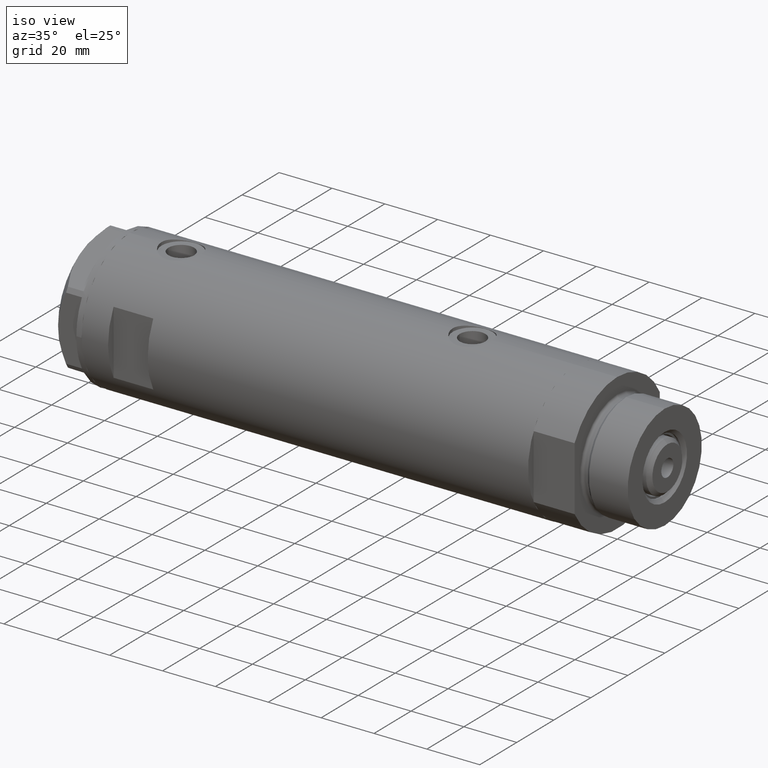
[diagram: clean part render]
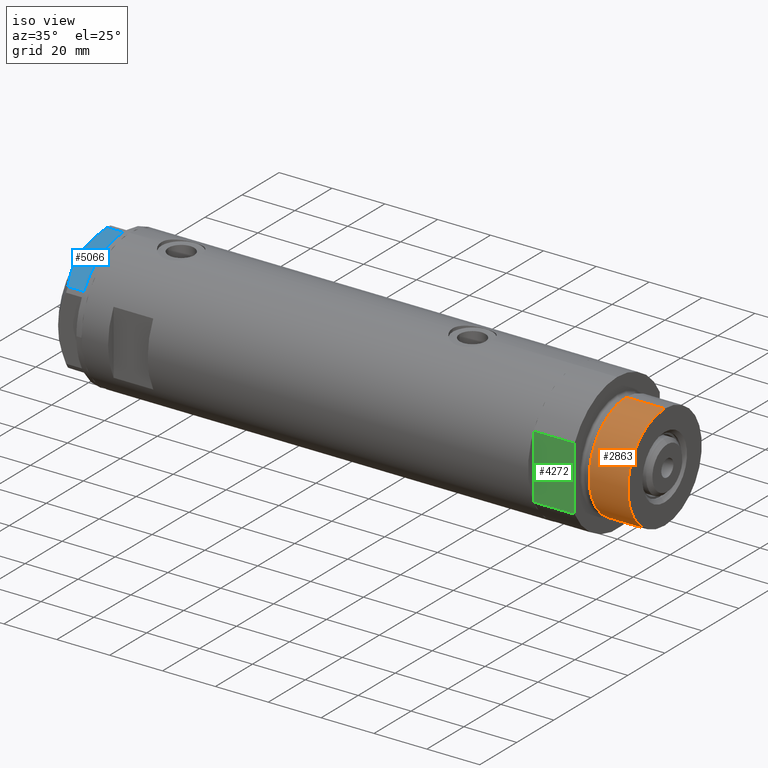
[diagram: same view with three faces highlighted in distinct colors, each labeled with its STEP entity id]
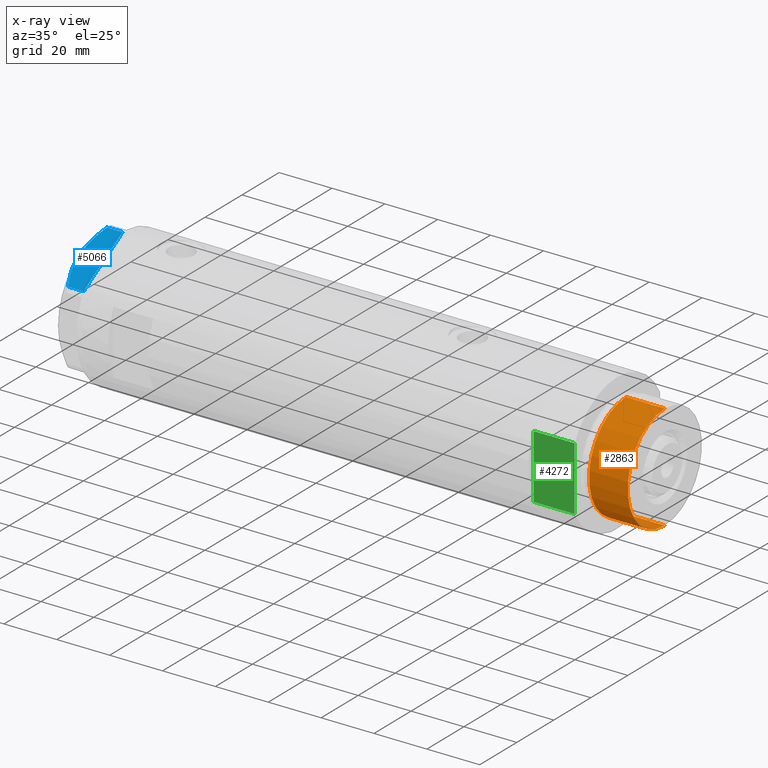
[diagram: x-ray of the same camera — body ghosted, the three highlighted faces saturated]
A machine part, iso view with three faces highlighted in distinct colors.
The next image is the same camera in x-ray (body ghosted, the three faces saturated) — at least one of them is partly hidden behind the body in this view.
Their STEP definitions:

[orange] entity #2863 — the highlighted cylindrical surface (partial cylindrical patch) has radius 20 mm, axis along (-1, -0, 0).
#182 = CARTESIAN_POINT ( 'NONE',  ( -19.99999999999999645, 0.000000000000000000, 18.87384048104053846 ) ) ;
#496 = ORIENTED_EDGE ( 'NONE', *, *, #768, .T. ) ;
#559 = EDGE_CURVE ( 'NONE', #4951, #3805, #786, .T. ) ;
#724 = EDGE_LOOP ( 'NONE', ( #3495, #1190, #3312, #496 ) ) ;
#768 = EDGE_CURVE ( 'NONE', #2172, #3805, #4469, .T. ) ;
#785 = DIRECTION ( 'NONE',  ( -0.000000000000000000, -0.000000000000000000, -1.000000000000000000 ) ) ;
#786 = LINE ( 'NONE', #5188, #2713 ) ;
#948 = CYLINDRICAL_SURFACE ( 'NONE', #4824, 19.99999999999999645 ) ;
#952 = VECTOR ( 'NONE', #785, 1000.000000000000000 ) ;
#1081 = EDGE_CURVE ( 'NONE', #3123, #4951, #1869, .T. ) ;
#1190 = ORIENTED_EDGE ( 'NONE', *, *, #1081, .F. ) ;
#1869 = CIRCLE ( 'NONE', #3367, 19.99999999999999645 ) ;
#1996 = DIRECTION ( 'NONE',  ( -0.000000000000000000, -0.000000000000000000, -1.000000000000000000 ) ) ;
#2172 = VERTEX_POINT ( 'NONE', #182 ) ;
#2449 = AXIS2_PLACEMENT_3D ( 'NONE', #4514, #4177, #2955 ) ;
#2713 = VECTOR ( 'NONE', #1996, 1000.000000000000000 ) ;
#2778 = LINE ( 'NONE', #4387, #952 ) ;
#2863 = ADVANCED_FACE ( 'NONE', ( #4945 ), #948, .T. ) ;
#2955 = DIRECTION ( 'NONE',  ( 1.000000000000000000, 0.000000000000000000, 0.000000000000000000 ) ) ;
#3041 = CARTESIAN_POINT ( 'NONE',  ( 0.000000000000000000, 0.000000000000000000, 33.50000000000000000 ) ) ;
#3123 = VERTEX_POINT ( 'NONE', #4079 ) ;
#3312 = ORIENTED_EDGE ( 'NONE', *, *, #5001, .T. ) ;
#3364 = DIRECTION ( 'NONE',  ( -1.000000000000000000, 0.000000000000000000, 0.000000000000000000 ) ) ;
#3367 = AXIS2_PLACEMENT_3D ( 'NONE', #3041, #3545, #5151 ) ;
#3495 = ORIENTED_EDGE ( 'NONE', *, *, #559, .F. ) ;
#3545 = DIRECTION ( 'NONE',  ( 0.000000000000000000, 0.000000000000000000, 1.000000000000000000 ) ) ;
#3764 = CARTESIAN_POINT ( 'NONE',  ( 19.99999999999999645, 2.449293598294706119E-15, 18.87384048104053846 ) ) ;
#3765 = CARTESIAN_POINT ( 'NONE',  ( 0.000000000000000000, 0.000000000000000000, 33.50000000000000000 ) ) ;
#3805 = VERTEX_POINT ( 'NONE', #3764 ) ;
#4079 = CARTESIAN_POINT ( 'NONE',  ( -19.99999999999999645, 0.000000000000000000, 33.50000000000000000 ) ) ;
#4177 = DIRECTION ( 'NONE',  ( -0.000000000000000000, -0.000000000000000000, 1.000000000000000000 ) ) ;
#4387 = CARTESIAN_POINT ( 'NONE',  ( -19.99999999999999645, 0.000000000000000000, 33.50000000000000000 ) ) ;
#4469 = CIRCLE ( 'NONE', #2449, 19.99999999999999645 ) ;
#4514 = CARTESIAN_POINT ( 'NONE',  ( 0.000000000000000000, 0.000000000000000000, 18.87384048104053846 ) ) ;
#4553 = CARTESIAN_POINT ( 'NONE',  ( 19.99999999999999645, 2.449293598294706119E-15, 33.50000000000000000 ) ) ;
#4581 = DIRECTION ( 'NONE',  ( -0.000000000000000000, -0.000000000000000000, -1.000000000000000000 ) ) ;
#4824 = AXIS2_PLACEMENT_3D ( 'NONE', #3765, #4581, #3364 ) ;
#4945 = FACE_OUTER_BOUND ( 'NONE', #724, .T. ) ;
#4951 = VERTEX_POINT ( 'NONE', #4553 ) ;
#5001 = EDGE_CURVE ( 'NONE', #3123, #2172, #2778, .T. ) ;
#5151 = DIRECTION ( 'NONE',  ( 1.000000000000000000, 0.000000000000000000, 0.000000000000000000 ) ) ;
#5188 = CARTESIAN_POINT ( 'NONE',  ( 19.99999999999999645, 2.449293598294706119E-15, 33.50000000000000000 ) ) ;

[blue] entity #5066 — the highlighted planar face has unit normal (-0, 0.5, -0.866).
#106 = ORIENTED_EDGE ( 'NONE', *, *, #4009, .T. ) ;
#169 = DIRECTION ( 'NONE',  ( -0.8660254037844414832, 0.4999999999999950040, 0.000000000000000000 ) ) ;
#203 = CARTESIAN_POINT ( 'NONE',  ( -5.671686373603866294, -23.28356272816335348, 8.040681765829727823 ) ) ;
#228 = LINE ( 'NONE', #3827, #4145 ) ;
#235 = CARTESIAN_POINT ( 'NONE',  ( -4.357207709417335373, -24.04247733877546267, 7.570552255230290406 ) ) ;
#266 = CARTESIAN_POINT ( 'NONE',  ( -13.34348161667001698, -18.85424967941148822, 8.907842277728438063 ) ) ;
#323 = EDGE_CURVE ( 'NONE', #2194, #4481, #4087, .T. ) ;
#511 = CARTESIAN_POINT ( 'NONE',  ( -0.9699484522404678843, -25.99811238272155123, 5.983800287808756835 ) ) ;
#561 = LINE ( 'NONE', #2163, #2059 ) ;
#675 = FACE_OUTER_BOUND ( 'NONE', #2619, .T. ) ;
#683 = CARTESIAN_POINT ( 'NONE',  ( -11.49999999999990585, -19.91858428704219364, 9.000000000000000000 ) ) ;
#703 = EDGE_CURVE ( 'NONE', #4481, #1831, #834, .T. ) ;
#704 = VECTOR ( 'NONE', #2048, 1000.000000000000000 ) ;
#780 = DIRECTION ( 'NONE',  ( 0.8660254037844415942, -0.4999999999999950595, 0.000000000000000000 ) ) ;
#834 = LINE ( 'NONE', #2438, #704 ) ;
#906 = CARTESIAN_POINT ( 'NONE',  ( -22.03005154776132102, -13.83905619136147536, 0.000000000000000000 ) ) ;
#957 = CARTESIAN_POINT ( 'NONE',  ( -2.640413878808339110, -25.03366871902064261, 6.844201024439214187 ) ) ;
#978 = CARTESIAN_POINT ( 'NONE',  ( -21.99999999999998224, -13.85640646055105485, 0.000000000000000000 ) ) ;
#996 = DIRECTION ( 'NONE',  ( -0.000000000000000000, 0.000000000000000000, -1.000000000000000000 ) ) ;
#1241 = CARTESIAN_POINT ( 'NONE',  ( -22.03005154776132102, -13.83905619136147536, 9.000000000000000000 ) ) ;
#1246 = ORIENTED_EDGE ( 'NONE', *, *, #4962, .T. ) ;
#1348 = CARTESIAN_POINT ( 'NONE',  ( -1.799196345398571983, -25.51934588838179607, 6.431317509510369845 ) ) ;
#1472 = CARTESIAN_POINT ( 'NONE',  ( -13.80210138309694301, -18.58946543380922378, 8.852712638955804181 ) ) ;
#1520 = CARTESIAN_POINT ( 'NONE',  ( -11.95865151389046588, -19.65378171203314395, 9.000000000000095923 ) ) ;
#1592 = CARTESIAN_POINT ( 'NONE',  ( -0.9999999999997406519, -25.98076211353317433, 0.000000000000000000 ) ) ;
#1714 = AXIS2_PLACEMENT_3D ( 'NONE', #2609, #2252, #169 ) ;
#1774 = CARTESIAN_POINT ( 'NONE',  ( -22.03005154776146313, -13.83905619136139364, 5.983800287807550689 ) ) ;
#1822 = DIRECTION ( 'NONE',  ( 0.8660254037844415942, -0.4999999999999950595, 0.000000000000000000 ) ) ;
#1831 = VERTEX_POINT ( 'NONE', #978 ) ;
#1921 = CARTESIAN_POINT ( 'NONE',  ( -12.41906678023023325, -19.38796083407287085, 8.981686407609506873 ) ) ;
#1928 = ORIENTED_EDGE ( 'NONE', *, *, #703, .T. ) ;
#1968 = CARTESIAN_POINT ( 'NONE',  ( -16.05322244309625290, -17.28978008384019915, 8.426899937603781865 ) ) ;
#2048 = DIRECTION ( 'NONE',  ( 0.8660254037844415942, -0.4999999999999950595, 0.000000000000000000 ) ) ;
#2059 = VECTOR ( 'NONE', #4506, 1000.000000000000000 ) ;
#2163 = CARTESIAN_POINT ( 'NONE',  ( -0.9699484522383977625, -25.99811238272274494, 9.000000000000000000 ) ) ;
#2194 = VERTEX_POINT ( 'NONE', #1774 ) ;
#2252 = DIRECTION ( 'NONE',  ( 0.4999999999999950595, 0.8660254037844415942, -0.000000000000000000 ) ) ;
#2261 = CARTESIAN_POINT ( 'NONE',  ( -22.03005154776146313, -13.83905619136139364, 5.983800287807550689 ) ) ;
#2305 = EDGE_CURVE ( 'NONE', #1831, #3336, #2740, .T. ) ;
#2307 = PLANE ( 'NONE',  #1714 ) ;
#2319 = CARTESIAN_POINT ( 'NONE',  ( -20.37350567916426058, -14.79546339452094017, 6.877782426143456362 ) ) ;
#2438 = CARTESIAN_POINT ( 'NONE',  ( -22.99999999999990408, -13.27905619136147841, 0.000000000000000000 ) ) ;
#2446 = VECTOR ( 'NONE', #996, 1000.000000000000000 ) ;
#2603 = VERTEX_POINT ( 'NONE', #4775 ) ;
#2609 = CARTESIAN_POINT ( 'NONE',  ( -22.99999999999990408, -13.27905619136147841, 9.000000000000000000 ) ) ;
#2619 = EDGE_LOOP ( 'NONE', ( #4030, #4786, #1928, #3038, #106, #1246, #5113 ) ) ;
#2740 = LINE ( 'NONE', #3930, #4898 ) ;
#2777 = VERTEX_POINT ( 'NONE', #4452 ) ;
#2962 = B_SPLINE_CURVE_WITH_KNOTS ( 'NONE', 3,
 ( #4486, #3648, #4853, #203, #3009, #235, #4559, #957, #1348, #511 ),
 .UNSPECIFIED., .F., .F.,
 ( 4, 2, 2, 2, 4 ),
 ( 0.01376519981810312397, 0.01998941321701459134, 0.02154546656674245428, 0.02310151991647032069, 0.02621362661592604310 ),
 .UNSPECIFIED. ) ;
#3009 = CARTESIAN_POINT ( 'NONE',  ( -5.229981517799206614, -23.53858114556453529, 7.892128867758890998 ) ) ;
#3038 = ORIENTED_EDGE ( 'NONE', *, *, #2305, .T. ) ;
#3125 = CARTESIAN_POINT ( 'NONE',  ( -11.49999999999990585, -19.91858428704219364, 9.000000000000000000 ) ) ;
#3247 = VERTEX_POINT ( 'NONE', #683 ) ;
#3284 = EDGE_CURVE ( 'NONE', #2194, #3247, #4291, .T. ) ;
#3336 = VERTEX_POINT ( 'NONE', #1592 ) ;
#3648 = CARTESIAN_POINT ( 'NONE',  ( -9.678244919010385416, -20.97037507344893115, 9.000000000000088818 ) ) ;
#3827 = CARTESIAN_POINT ( 'NONE',  ( -22.99999999999990408, -13.27905619136147841, 0.000000000000000000 ) ) ;
#3867 = CARTESIAN_POINT ( 'NONE',  ( -18.67981377008999644, -15.77331687414923778, 7.629374868826104716 ) ) ;
#3930 = CARTESIAN_POINT ( 'NONE',  ( -22.99999999999990408, -13.27905619136147841, 0.000000000000000000 ) ) ;
#4009 = EDGE_CURVE ( 'NONE', #3336, #2777, #228, .T. ) ;
#4030 = ORIENTED_EDGE ( 'NONE', *, *, #3284, .F. ) ;
#4087 = LINE ( 'NONE', #1241, #2446 ) ;
#4145 = VECTOR ( 'NONE', #1822, 1000.000000000000000 ) ;
#4291 = B_SPLINE_CURVE_WITH_KNOTS ( 'NONE', 3,
 ( #2261, #2319, #3867, #1968, #5127, #1472, #266, #1921, #1520, #3125 ),
 .UNSPECIFIED., .F., .F.,
 ( 4, 2, 2, 2, 4 ),
 ( 0.001228959670438514989, 0.007497079744270818830, 0.01063113978118697227, 0.01219816979964504812, 0.01376519981810312397 ),
 .UNSPECIFIED. ) ;
#4452 = CARTESIAN_POINT ( 'NONE',  ( -0.9699484522383943208, -25.99811238272274494, 0.000000000000000000 ) ) ;
#4481 = VERTEX_POINT ( 'NONE', #906 ) ;
#4486 = CARTESIAN_POINT ( 'NONE',  ( -11.49999999999990585, -19.91858428704219364, 9.000000000000000000 ) ) ;
#4506 = DIRECTION ( 'NONE',  ( 0.000000000000000000, 0.000000000000000000, 1.000000000000000000 ) ) ;
#4559 = CARTESIAN_POINT ( 'NONE',  ( -3.925137811031424562, -24.29193301091729396, 7.397272853992039821 ) ) ;
#4646 = EDGE_CURVE ( 'NONE', #3247, #2603, #2962, .T. ) ;
#4775 = CARTESIAN_POINT ( 'NONE',  ( -0.9699484522404678843, -25.99811238272155123, 5.983800287808756835 ) ) ;
#4786 = ORIENTED_EDGE ( 'NONE', *, *, #323, .T. ) ;
#4853 = CARTESIAN_POINT ( 'NONE',  ( -7.884645426990268824, -22.00591022298511490, 8.707651728477127762 ) ) ;
#4898 = VECTOR ( 'NONE', #780, 1000.000000000000000 ) ;
#4962 = EDGE_CURVE ( 'NONE', #2777, #2603, #561, .T. ) ;
#5066 = ADVANCED_FACE ( 'NONE', ( #675 ), #2307, .F. ) ;
#5113 = ORIENTED_EDGE ( 'NONE', *, *, #4646, .F. ) ;
#5127 = CARTESIAN_POINT ( 'NONE',  ( -15.16323225988328538, -17.80361615569431777, 8.637313967156948991 ) ) ;

[green] entity #4272 — the highlighted planar face has unit normal (-0, 1, 0).
#183 = LINE ( 'NONE', #1775, #619 ) ;
#188 = VECTOR ( 'NONE', #1504, 1000.000000000000000 ) ;
#253 = CARTESIAN_POINT ( 'NONE',  ( 12.12435565298215323, -22.99999999999999645, 0.000000000000000000 ) ) ;
#382 = EDGE_CURVE ( 'NONE', #4919, #1256, #3088, .T. ) ;
#462 = VECTOR ( 'NONE', #4277, 1000.000000000000000 ) ;
#550 = VERTEX_POINT ( 'NONE', #1181 ) ;
#619 = VECTOR ( 'NONE', #1388, 1000.000000000000000 ) ;
#697 = LINE ( 'NONE', #253, #788 ) ;
#788 = VECTOR ( 'NONE', #3234, 1000.000000000000000 ) ;
#828 = EDGE_LOOP ( 'NONE', ( #1755, #1620, #3527, #1389 ) ) ;
#1074 = VERTEX_POINT ( 'NONE', #1437 ) ;
#1181 = CARTESIAN_POINT ( 'NONE',  ( 12.12435565298215323, -22.99999999999999645, 0.000000000000000000 ) ) ;
#1256 = VERTEX_POINT ( 'NONE', #4928 ) ;
#1388 = DIRECTION ( 'NONE',  ( -1.000000000000000000, -0.000000000000000000, -0.000000000000000000 ) ) ;
#1389 = ORIENTED_EDGE ( 'NONE', *, *, #1920, .T. ) ;
#1414 = DIRECTION ( 'NONE',  ( 0.000000000000000000, -0.000000000000000000, 1.000000000000000000 ) ) ;
#1437 = CARTESIAN_POINT ( 'NONE',  ( 12.12435565298215323, -22.99999999999999645, 15.50000000000000000 ) ) ;
#1504 = DIRECTION ( 'NONE',  ( -0.000000000000000000, -0.000000000000000000, 1.000000000000000000 ) ) ;
#1620 = ORIENTED_EDGE ( 'NONE', *, *, #382, .F. ) ;
#1755 = ORIENTED_EDGE ( 'NONE', *, *, #4170, .T. ) ;
#1775 = CARTESIAN_POINT ( 'NONE',  ( -12.12435565298215145, -22.99999999999999645, 15.50000000000000000 ) ) ;
#1920 = EDGE_CURVE ( 'NONE', #550, #1074, #697, .T. ) ;
#2201 = DIRECTION ( 'NONE',  ( -0.000000000000000000, 1.000000000000000000, 0.000000000000000000 ) ) ;
#2537 = FACE_OUTER_BOUND ( 'NONE', #828, .T. ) ;
#2638 = AXIS2_PLACEMENT_3D ( 'NONE', #4234, #2201, #1414 ) ;
#2642 = LINE ( 'NONE', #4250, #462 ) ;
#2970 = EDGE_CURVE ( 'NONE', #550, #4919, #2642, .T. ) ;
#3088 = LINE ( 'NONE', #3955, #188 ) ;
#3234 = DIRECTION ( 'NONE',  ( -0.000000000000000000, -0.000000000000000000, 1.000000000000000000 ) ) ;
#3442 = PLANE ( 'NONE',  #2638 ) ;
#3527 = ORIENTED_EDGE ( 'NONE', *, *, #2970, .F. ) ;
#3955 = CARTESIAN_POINT ( 'NONE',  ( -12.12435565298215145, -22.99999999999999645, 0.000000000000000000 ) ) ;
#4000 = CARTESIAN_POINT ( 'NONE',  ( -12.12435565298215501, -22.99999999999999645, 0.000000000000000000 ) ) ;
#4170 = EDGE_CURVE ( 'NONE', #1074, #1256, #183, .T. ) ;
#4234 = CARTESIAN_POINT ( 'NONE',  ( -12.12435565298215145, -22.99999999999999645, 0.000000000000000000 ) ) ;
#4250 = CARTESIAN_POINT ( 'NONE',  ( -12.12435565298215145, -22.99999999999999645, 0.000000000000000000 ) ) ;
#4272 = ADVANCED_FACE ( 'NONE', ( #2537 ), #3442, .F. ) ;
#4277 = DIRECTION ( 'NONE',  ( -1.000000000000000000, -0.000000000000000000, -0.000000000000000000 ) ) ;
#4919 = VERTEX_POINT ( 'NONE', #4000 ) ;
#4928 = CARTESIAN_POINT ( 'NONE',  ( -12.12435565298215323, -22.99999999999999645, 15.50000000000000000 ) ) ;